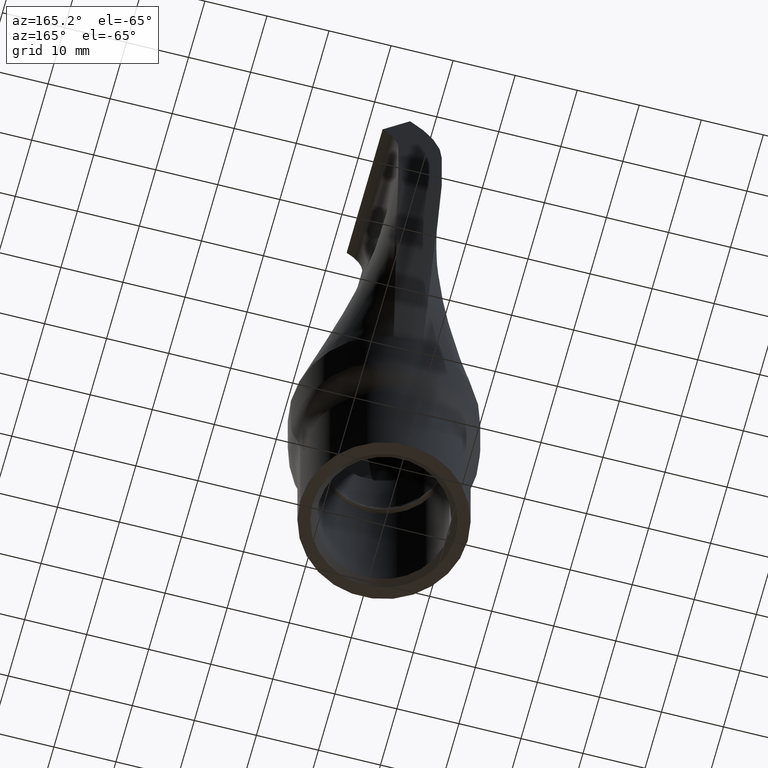
[diagram: clean part render]
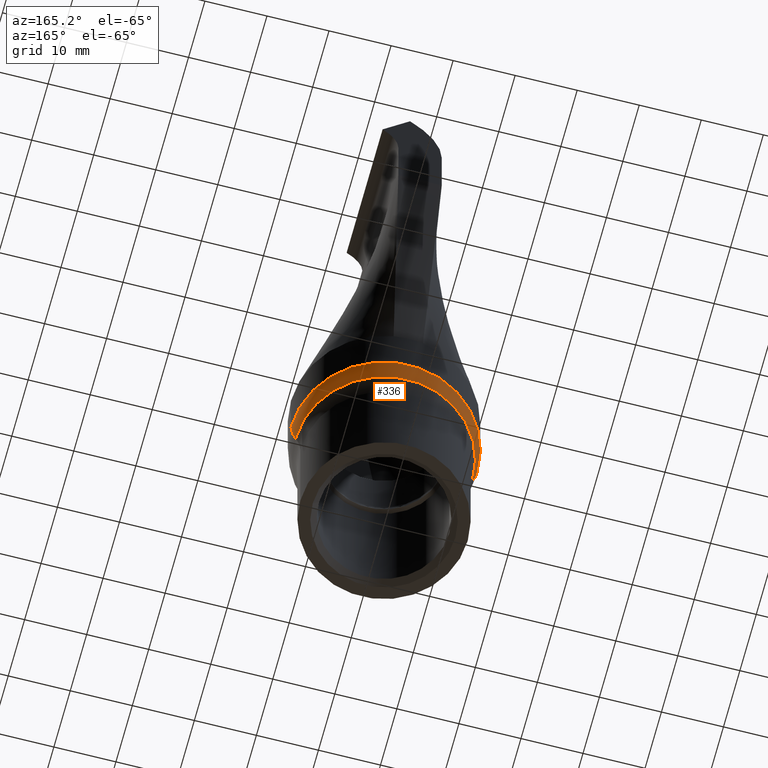
[diagram: same view with one face highlighted and labeled with its STEP entity id]
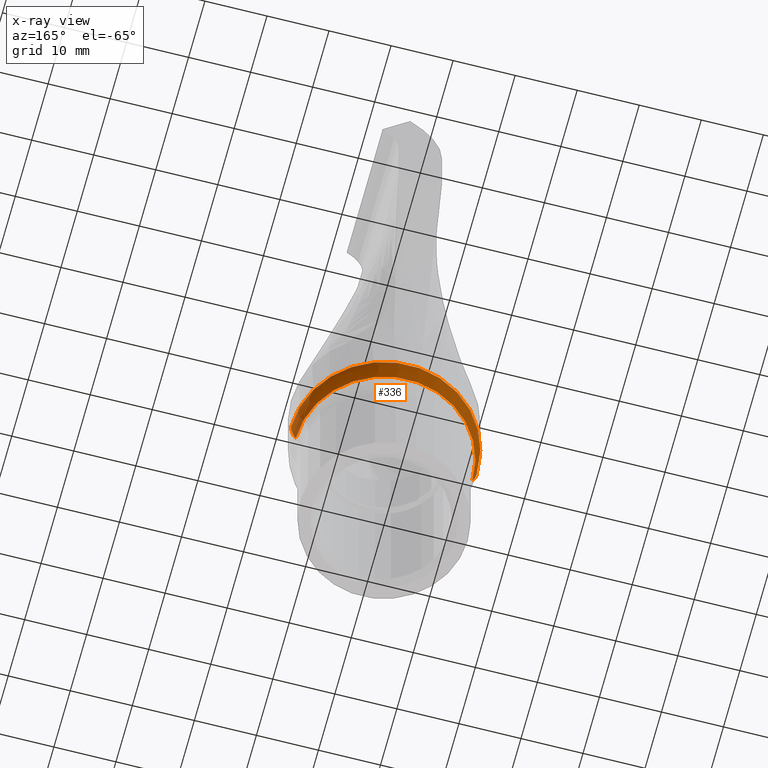
[diagram: x-ray of the same camera — body ghosted, the highlighted face saturated]
A machine part, auxiliary view. The second image highlights one B-rep face of the part: STEP entity #336.
The next image is the same camera in x-ray: the body ghosted, the highlighted face saturated — about 0% of this face is hidden behind the body in this view.
In plain terms, the highlighted toroidal blend (fillet) surface has major radius 5 mm and minor (blend) radius 10 mm.
Its self-contained STEP definition (entity closure, byte-faithful):
#336 = ADVANCED_FACE ( 'NONE', ( #3880 ), #14100, .T. ) ;
#556 = CIRCLE ( 'NONE', #4061, 10.00000000000000200 ) ;
#681 = DIRECTION ( 'NONE',  ( 0.0000000000000000000, 0.0000000000000000000, 1.000000000000000000 ) ) ;
#1055 = CIRCLE ( 'NONE', #13802, 15.00000000000000000 ) ;
#1589 = DIRECTION ( 'NONE',  ( -1.000000000000000000, 0.0000000000000000000, 0.0000000000000000000 ) ) ;
#1702 = CARTESIAN_POINT ( 'NONE',  ( 14.24999999999999600, 0.0000000000000000000, 22.53184416196629100 ) ) ;
#2849 = VERTEX_POINT ( 'NONE', #1702 ) ;
#2941 = CARTESIAN_POINT ( 'NONE',  ( 0.0000000000000000000, 0.0000000000000000000, 26.33151520035895000 ) ) ;
#3054 = AXIS2_PLACEMENT_3D ( 'NONE', #12345, #13535, #14746 ) ;
#3096 = DIRECTION ( 'NONE',  ( -1.000000000000000000, 0.0000000000000000000, 0.0000000000000000000 ) ) ;
#3106 = CARTESIAN_POINT ( 'NONE',  ( -15.00000000000000000, 0.0000000000000000000, 26.33151520035895000 ) ) ;
#3749 = VERTEX_POINT ( 'NONE', #4587 ) ;
#3880 = FACE_OUTER_BOUND ( 'NONE', #7211, .T. ) ;
#3953 = DIRECTION ( 'NONE',  ( 0.0000000000000000000, -1.000000000000000000, 0.0000000000000000000 ) ) ;
#4061 = AXIS2_PLACEMENT_3D ( 'NONE', #13707, #3953, #11153 ) ;
#4290 = CIRCLE ( 'NONE', #7931, 14.24999999999999600 ) ;
#4587 = CARTESIAN_POINT ( 'NONE',  ( 15.00000000000000000, 1.836970198721029600E-015, 26.33151520035895000 ) ) ;
#5284 = ORIENTED_EDGE ( 'NONE', *, *, #7770, .F. ) ;
#7211 = EDGE_LOOP ( 'NONE', ( #11532, #11522, #9318, #5284 ) ) ;
#7770 = EDGE_CURVE ( 'NONE', #9684, #10359, #556, .T. ) ;
#7931 = AXIS2_PLACEMENT_3D ( 'NONE', #10072, #8861, #1589 ) ;
#7936 = CARTESIAN_POINT ( 'NONE',  ( -14.24999999999999600, 1.745121688784978200E-015, 22.53184416196629100 ) ) ;
#8788 = AXIS2_PLACEMENT_3D ( 'NONE', #13994, #9024, #12606 ) ;
#8861 = DIRECTION ( 'NONE',  ( -0.0000000000000000000, -0.0000000000000000000, -1.000000000000000000 ) ) ;
#9024 = DIRECTION ( 'NONE',  ( -0.0000000000000000000, -0.0000000000000000000, -1.000000000000000000 ) ) ;
#9318 = ORIENTED_EDGE ( 'NONE', *, *, #13740, .F. ) ;
#9684 = VERTEX_POINT ( 'NONE', #3106 ) ;
#10072 = CARTESIAN_POINT ( 'NONE',  ( 0.0000000000000000000, 0.0000000000000000000, 22.53184416196629100 ) ) ;
#10359 = VERTEX_POINT ( 'NONE', #7936 ) ;
#10716 = CIRCLE ( 'NONE', #3054, 10.00000000000000000 ) ;
#11153 = DIRECTION ( 'NONE',  ( 0.0000000000000000000, 0.0000000000000000000, -1.000000000000000000 ) ) ;
#11522 = ORIENTED_EDGE ( 'NONE', *, *, #14393, .T. ) ;
#11532 = ORIENTED_EDGE ( 'NONE', *, *, #14527, .F. ) ;
#12345 = CARTESIAN_POINT ( 'NONE',  ( 4.999999999999997300, 6.123233995736763300E-016, 26.33151520035895000 ) ) ;
#12606 = DIRECTION ( 'NONE',  ( -1.000000000000000000, 0.0000000000000000000, 0.0000000000000000000 ) ) ;
#13535 = DIRECTION ( 'NONE',  ( -1.224646799147353200E-016, 1.000000000000000000, 0.0000000000000000000 ) ) ;
#13707 = CARTESIAN_POINT ( 'NONE',  ( -4.999999999999997300, 0.0000000000000000000, 26.33151520035895000 ) ) ;
#13740 = EDGE_CURVE ( 'NONE', #10359, #2849, #4290, .T. ) ;
#13802 = AXIS2_PLACEMENT_3D ( 'NONE', #2941, #681, #3096 ) ;
#13994 = CARTESIAN_POINT ( 'NONE',  ( 0.0000000000000000000, 0.0000000000000000000, 26.33151520035895000 ) ) ;
#14100 = TOROIDAL_SURFACE ( 'NONE', #8788, 4.999999999999997300, 10.00000000000000000 ) ;
#14393 = EDGE_CURVE ( 'NONE', #3749, #2849, #10716, .T. ) ;
#14527 = EDGE_CURVE ( 'NONE', #3749, #9684, #1055, .T. ) ;
#14746 = DIRECTION ( 'NONE',  ( -1.000000000000000000, -1.224646799147353200E-016, 0.0000000000000000000 ) ) ;